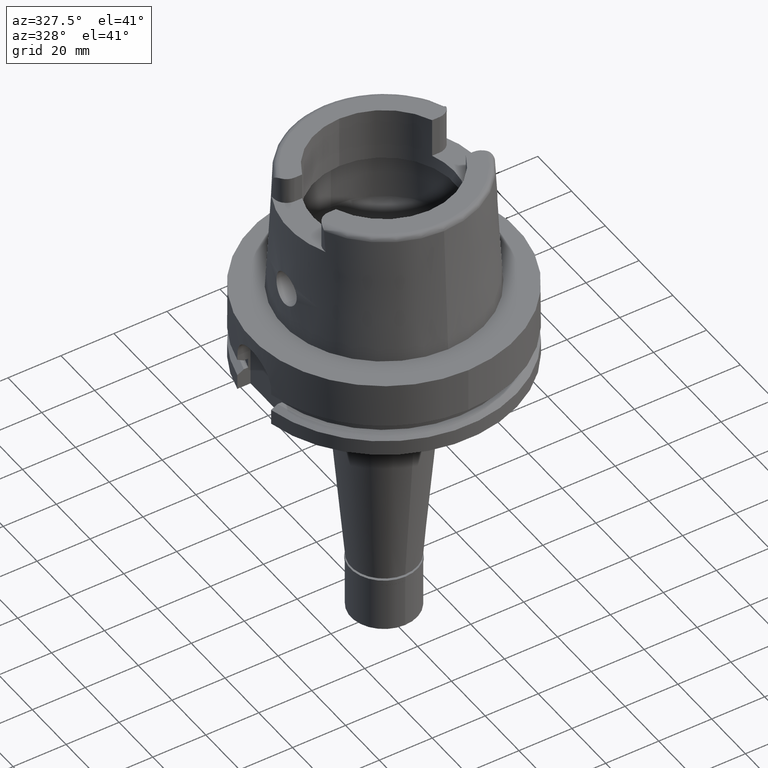
[diagram: clean part render]
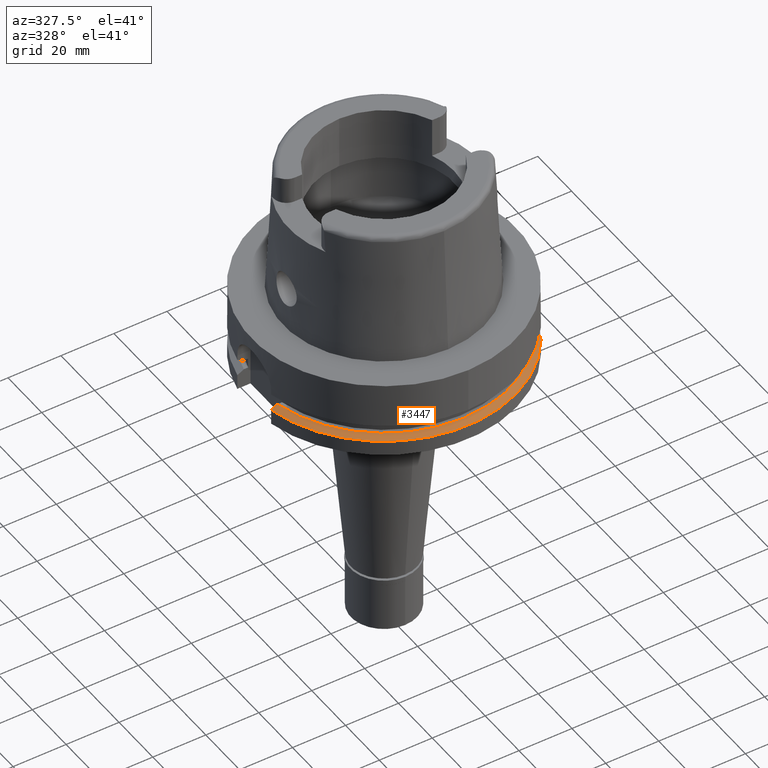
[diagram: same view with one face highlighted and labeled with its STEP entity id]
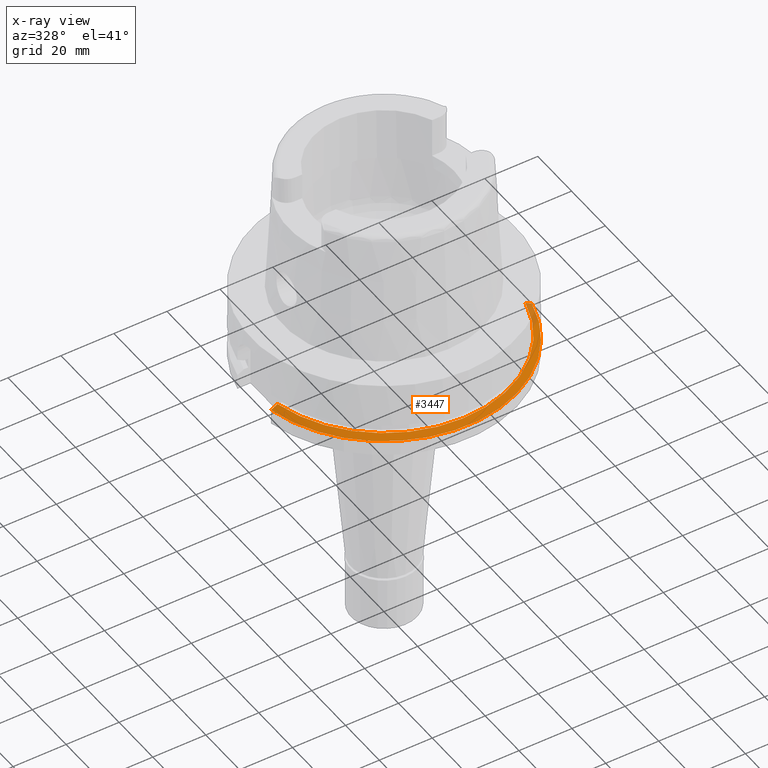
[diagram: x-ray of the same camera — body ghosted, the highlighted face saturated]
A machine part, auxiliary view. The second image highlights one B-rep face of the part: STEP entity #3447.
The next image is the same camera in x-ray: the body ghosted, the highlighted face saturated — about 5% of this face is hidden behind the body in this view.
In plain terms, the highlighted conical surface has half-angle 60 deg.
Its self-contained STEP definition (entity closure, byte-faithful):
#29 = EDGE_CURVE ( 'NONE', #4607, #833, #3712, .T. ) ;
#302 = CARTESIAN_POINT ( 'NONE',  ( -48.98979485565999425, -10.00000000000000000, -23.24759526419000011 ) ) ;
#714 = ORIENTED_EDGE ( 'NONE', *, *, #29, .F. ) ;
#833 = VERTEX_POINT ( 'NONE', #4973 ) ;
#1283 = EDGE_LOOP ( 'NONE', ( #5507, #3523, #714, #5479 ) ) ;
#1335 = B_SPLINE_CURVE_WITH_KNOTS ( 'NONE', 3,
 ( #4434, #3506, #1407, #1351, #3127, #3069 ),
 .UNSPECIFIED., .F., .F.,
 ( 4, 1, 1, 4 ),
 ( 0.0000000000000000000, 0.3333333333333000081, 0.6666666666667000474, 1.000000000000000000 ),
 .UNSPECIFIED. ) ;
#1351 = CARTESIAN_POINT ( 'NONE',  ( -47.37076227628000424, -10.00000000000000000, -22.33230648793000128 ) ) ;
#1407 = CARTESIAN_POINT ( 'NONE',  ( -48.18041161677000161, -10.00000000000000000, -22.78984413388999997 ) ) ;
#1436 = CARTESIAN_POINT ( 'NONE',  ( 48.77499359303000404, -11.00000000000000000, -23.24759526419000011 ) ) ;
#1575 = AXIS2_PLACEMENT_3D ( 'NONE', #5003, #4089, #4176 ) ;
#2010 = CONICAL_SURFACE ( 'NONE', #5361, 48.81129763208999606, 1.047197551196400456 ) ;
#2055 = CARTESIAN_POINT ( 'NONE',  ( 46.60605711264999940, -11.00000000000000000, -22.02738808210999721 ) ) ;
#2065 = DIRECTION ( 'NONE',  ( 0.0000000000000000000, 0.0000000000000000000, -1.000000000000000000 ) ) ;
#2730 = CARTESIAN_POINT ( 'NONE',  ( 46.33477721644000269, -11.00000000000000000, -21.87500000000000000 ) ) ;
#2779 = CARTESIAN_POINT ( 'NONE',  ( 46.33477721644000269, -11.00000000000000000, -21.87500000000000000 ) ) ;
#2843 = CARTESIAN_POINT ( 'NONE',  ( 0.0000000000000000000, 0.0000000000000000000, -21.87500000000000000 ) ) ;
#3069 = CARTESIAN_POINT ( 'NONE',  ( -46.56083740329999898, -10.00000000000000000, -21.87500000000000000 ) ) ;
#3127 = CARTESIAN_POINT ( 'NONE',  ( -46.83084020607000042, -10.00000000000000000, -22.02741066863000086 ) ) ;
#3334 = DIRECTION ( 'NONE',  ( 0.0000000000000000000, 0.0000000000000000000, -1.000000000000000000 ) ) ;
#3413 = EDGE_CURVE ( 'NONE', #4607, #5534, #4640, .T. ) ;
#3447 = ADVANCED_FACE ( 'NONE', ( #4175 ), #2010, .T. ) ;
#3506 = CARTESIAN_POINT ( 'NONE',  ( -48.72002593965999750, -10.00000000000000000, -23.09499092030999989 ) ) ;
#3523 = ORIENTED_EDGE ( 'NONE', *, *, #4830, .F. ) ;
#3659 = CARTESIAN_POINT ( 'NONE',  ( 47.14851446811000102, -11.00000000000000000, -22.33225649733000040 ) ) ;
#3712 = B_SPLINE_CURVE_WITH_KNOTS ( 'NONE', 3,
 ( #2779, #2055, #3659, #4521, #4974, #1436 ),
 .UNSPECIFIED., .F., .F.,
 ( 4, 1, 1, 4 ),
 ( 0.0000000000000000000, 0.3333333333333000081, 0.6666666666667000474, 1.000000000000000000 ),
 .UNSPECIFIED. ) ;
#3785 = DIRECTION ( 'NONE',  ( 0.0000000000000000000, -1.000000000000000000, 0.0000000000000000000 ) ) ;
#3860 = EDGE_CURVE ( 'NONE', #5336, #5534, #1335, .T. ) ;
#4079 = AXIS2_PLACEMENT_3D ( 'NONE', #2843, #2065, #5401 ) ;
#4089 = DIRECTION ( 'NONE',  ( 0.0000000000000000000, 0.0000000000000000000, -1.000000000000000000 ) ) ;
#4175 = FACE_OUTER_BOUND ( 'NONE', #1283, .T. ) ;
#4176 = DIRECTION ( 'NONE',  ( 0.9754998718605770724, -0.2199999999999950051, 0.0000000000000000000 ) ) ;
#4289 = CIRCLE ( 'NONE', #1575, 50.00000000000000711 ) ;
#4434 = CARTESIAN_POINT ( 'NONE',  ( -48.98979485565999425, -10.00000000000000000, -23.24759526419000011 ) ) ;
#4521 = CARTESIAN_POINT ( 'NONE',  ( 47.96191616323000062, -11.00000000000000000, -22.78979543230000004 ) ) ;
#4528 = CARTESIAN_POINT ( 'NONE',  ( 0.0000000000000000000, 0.0000000000000000000, -22.56129763209999695 ) ) ;
#4607 = VERTEX_POINT ( 'NONE', #2730 ) ;
#4640 = CIRCLE ( 'NONE', #4079, 47.62259526418999656 ) ;
#4830 = EDGE_CURVE ( 'NONE', #833, #5336, #4289, .T. ) ;
#4973 = CARTESIAN_POINT ( 'NONE',  ( 48.77499359303000404, -11.00000000000000000, -23.24759526419000011 ) ) ;
#4974 = CARTESIAN_POINT ( 'NONE',  ( 48.50399904748000068, -11.00000000000000000, -23.09496975037999889 ) ) ;
#5003 = CARTESIAN_POINT ( 'NONE',  ( 0.0000000000000000000, 0.0000000000000000000, -23.24759526419000011 ) ) ;
#5336 = VERTEX_POINT ( 'NONE', #302 ) ;
#5361 = AXIS2_PLACEMENT_3D ( 'NONE', #4528, #3334, #3785 ) ;
#5401 = DIRECTION ( 'NONE',  ( 0.0000000000000000000, -1.000000000000000000, 0.0000000000000000000 ) ) ;
#5479 = ORIENTED_EDGE ( 'NONE', *, *, #3413, .T. ) ;
#5507 = ORIENTED_EDGE ( 'NONE', *, *, #3860, .F. ) ;
#5534 = VERTEX_POINT ( 'NONE', #5560 ) ;
#5560 = CARTESIAN_POINT ( 'NONE',  ( -46.56083740329999898, -10.00000000000000000, -21.87500000000000000 ) ) ;